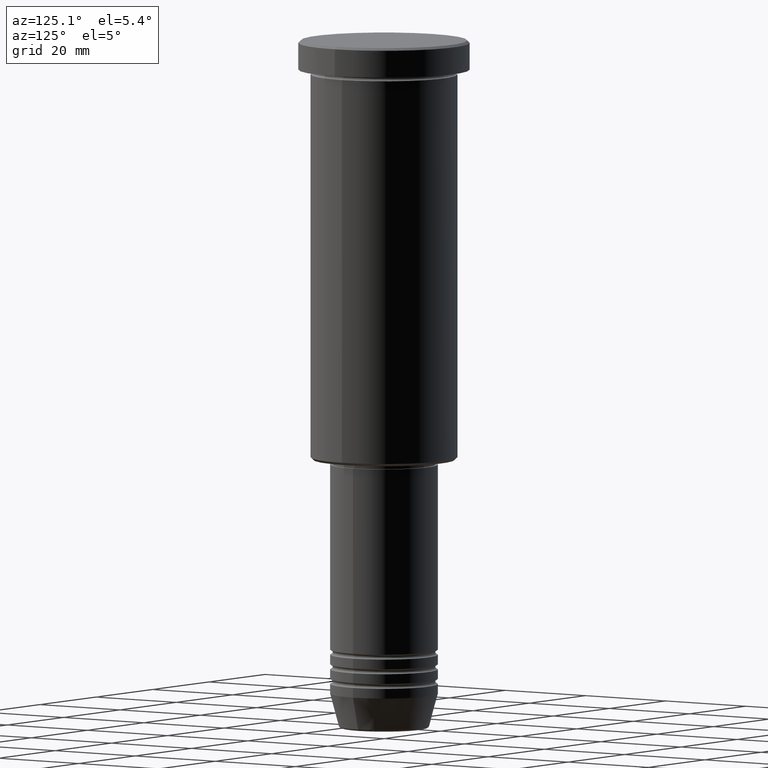
[diagram: clean part render]
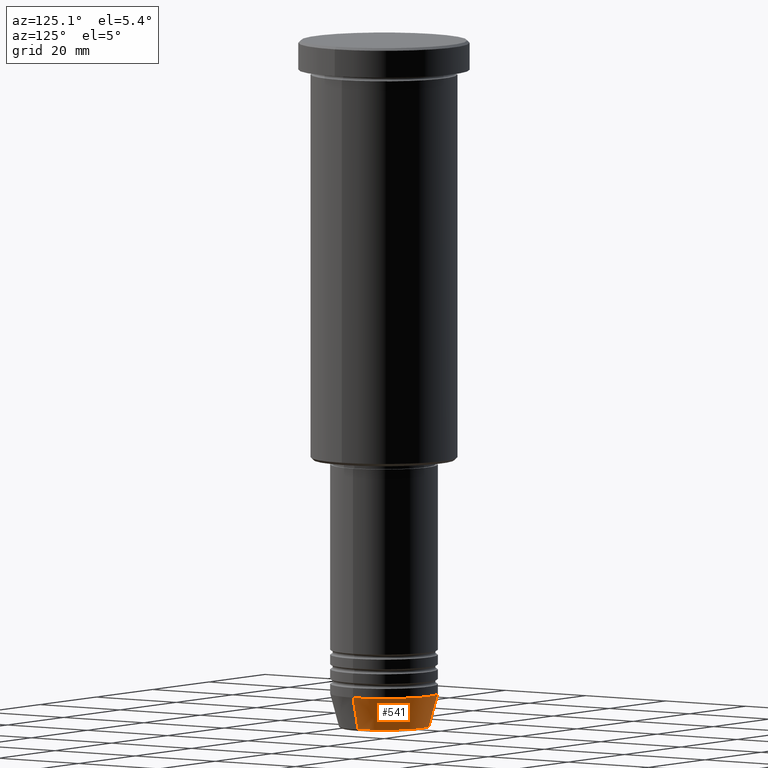
[diagram: same view with one face highlighted and labeled with its STEP entity id]
A machine part, auxiliary view. The second image highlights one B-rep face of the part: STEP entity #541.
In plain terms, the highlighted conical surface has half-angle 15 deg.
Its self-contained STEP definition (entity closure, byte-faithful):
#59 = EDGE_CURVE ( 'NONE', #126, #115, #1144, .T. ) ;
#69 = EDGE_LOOP ( 'NONE', ( #508, #558, #453, #886 ) ) ;
#115 = VERTEX_POINT ( 'NONE', #185 ) ;
#126 = VERTEX_POINT ( 'NONE', #829 ) ;
#127 = LINE ( 'NONE', #492, #680 ) ;
#154 = DIRECTION ( 'NONE',  ( -0.000000000000000000, -0.000000000000000000, 1.000000000000000000 ) ) ;
#173 = DIRECTION ( 'NONE',  ( -0.000000000000000000, -0.000000000000000000, 1.000000000000000000 ) ) ;
#185 = CARTESIAN_POINT ( 'NONE',  ( -9.223655072137189492, 1.238341722557647202E-15, -140.6294095225512706 ) ) ;
#260 = CARTESIAN_POINT ( 'NONE',  ( 0.000000000000000000, 0.000000000000000000, -134.0000000000000000 ) ) ;
#305 = DIRECTION ( 'NONE',  ( 0.2588190451025213501, 0.000000000000000000, 0.9659258262890680902 ) ) ;
#326 = DIRECTION ( 'NONE',  ( -0.000000000000000000, -0.000000000000000000, 1.000000000000000000 ) ) ;
#371 = CARTESIAN_POINT ( 'NONE',  ( -11.00000000000000000, 1.347111479062088405E-15, -134.0000000000000000 ) ) ;
#387 = CONICAL_SURFACE ( 'NONE', #547, 11.00000000000000000, 0.2617993877991500740 ) ;
#415 = AXIS2_PLACEMENT_3D ( 'NONE', #614, #173, #895 ) ;
#439 = AXIS2_PLACEMENT_3D ( 'NONE', #607, #326, #691 ) ;
#453 = ORIENTED_EDGE ( 'NONE', *, *, #493, .F. ) ;
#492 = CARTESIAN_POINT ( 'NONE',  ( 11.00000000000000000, 0.000000000000000000, -134.0000000000000000 ) ) ;
#493 = EDGE_CURVE ( 'NONE', #887, #646, #977, .T. ) ;
#508 = ORIENTED_EDGE ( 'NONE', *, *, #59, .T. ) ;
#541 = ADVANCED_FACE ( 'NONE', ( #590 ), #387, .T. ) ;
#547 = AXIS2_PLACEMENT_3D ( 'NONE', #260, #154, #702 ) ;
#558 = ORIENTED_EDGE ( 'NONE', *, *, #733, .T. ) ;
#563 = CARTESIAN_POINT ( 'NONE',  ( -11.00000000000000000, 1.347111479062088405E-15, -134.0000000000000000 ) ) ;
#590 = FACE_OUTER_BOUND ( 'NONE', #69, .T. ) ;
#607 = CARTESIAN_POINT ( 'NONE',  ( 0.000000000000000000, 0.000000000000000000, -134.0000000000000000 ) ) ;
#614 = CARTESIAN_POINT ( 'NONE',  ( 0.000000000000000000, 0.000000000000000000, -140.6294095225512706 ) ) ;
#646 = VERTEX_POINT ( 'NONE', #371 ) ;
#680 = VECTOR ( 'NONE', #305, 1000.000000000000000 ) ;
#690 = CARTESIAN_POINT ( 'NONE',  ( 11.00000000000000000, 0.000000000000000000, -134.0000000000000000 ) ) ;
#691 = DIRECTION ( 'NONE',  ( 1.000000000000000000, 0.000000000000000000, 0.000000000000000000 ) ) ;
#702 = DIRECTION ( 'NONE',  ( 1.000000000000000000, 0.000000000000000000, 0.000000000000000000 ) ) ;
#733 = EDGE_CURVE ( 'NONE', #115, #646, #756, .T. ) ;
#756 = LINE ( 'NONE', #563, #781 ) ;
#781 = VECTOR ( 'NONE', #843, 1000.000000000000000 ) ;
#829 = CARTESIAN_POINT ( 'NONE',  ( 9.223655072137189492, 0.000000000000000000, -140.6294095225512706 ) ) ;
#843 = DIRECTION ( 'NONE',  ( -0.2588190451025213501, 3.169619151431772337E-17, 0.9659258262890680902 ) ) ;
#886 = ORIENTED_EDGE ( 'NONE', *, *, #1149, .F. ) ;
#887 = VERTEX_POINT ( 'NONE', #690 ) ;
#895 = DIRECTION ( 'NONE',  ( 1.000000000000000000, 0.000000000000000000, 0.000000000000000000 ) ) ;
#977 = CIRCLE ( 'NONE', #439, 11.00000000000000000 ) ;
#1144 = CIRCLE ( 'NONE', #415, 9.223655072137189492 ) ;
#1149 = EDGE_CURVE ( 'NONE', #126, #887, #127, .T. ) ;